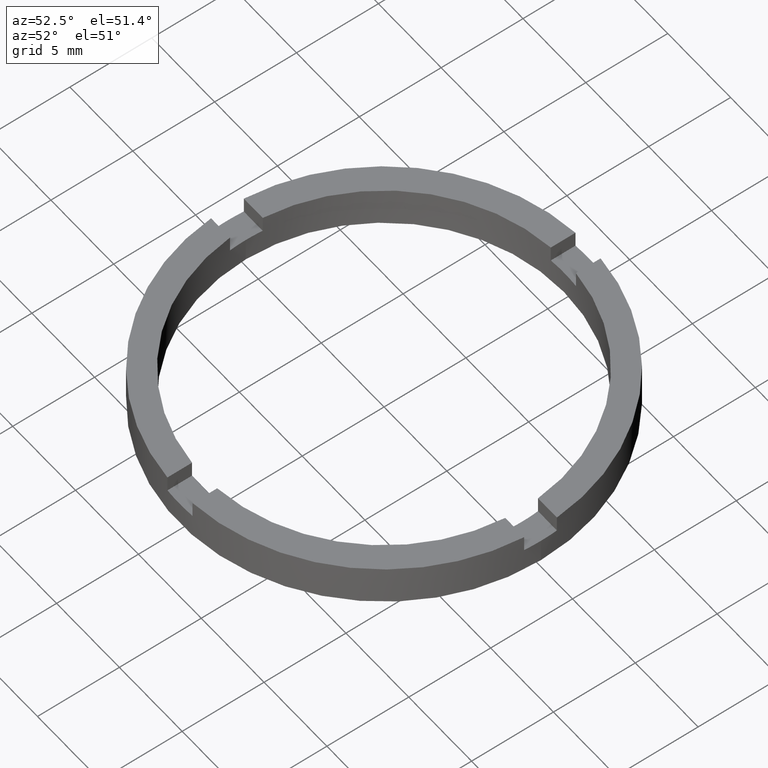
[diagram: clean part render]
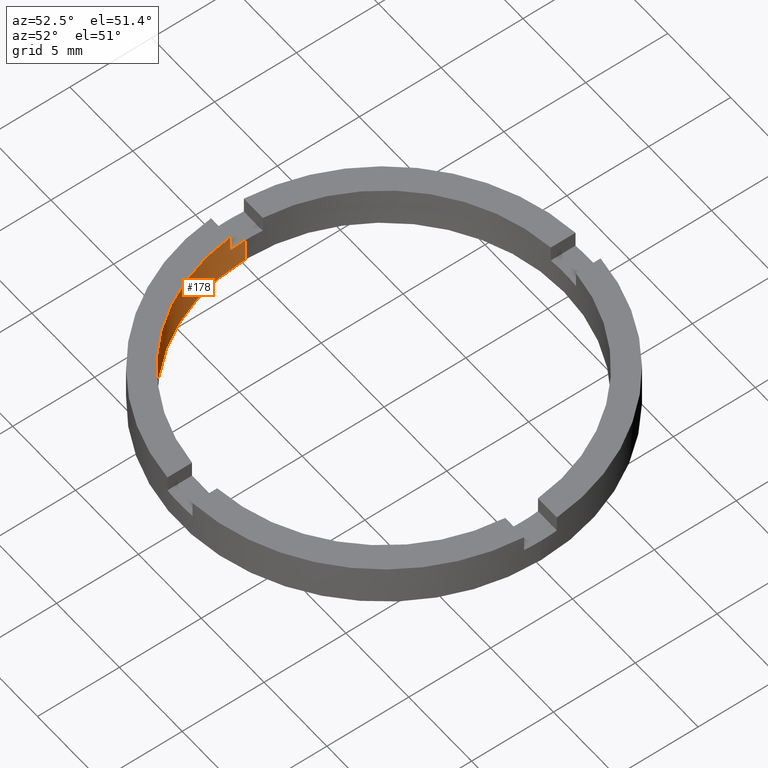
[diagram: same view with one face highlighted and labeled with its STEP entity id]
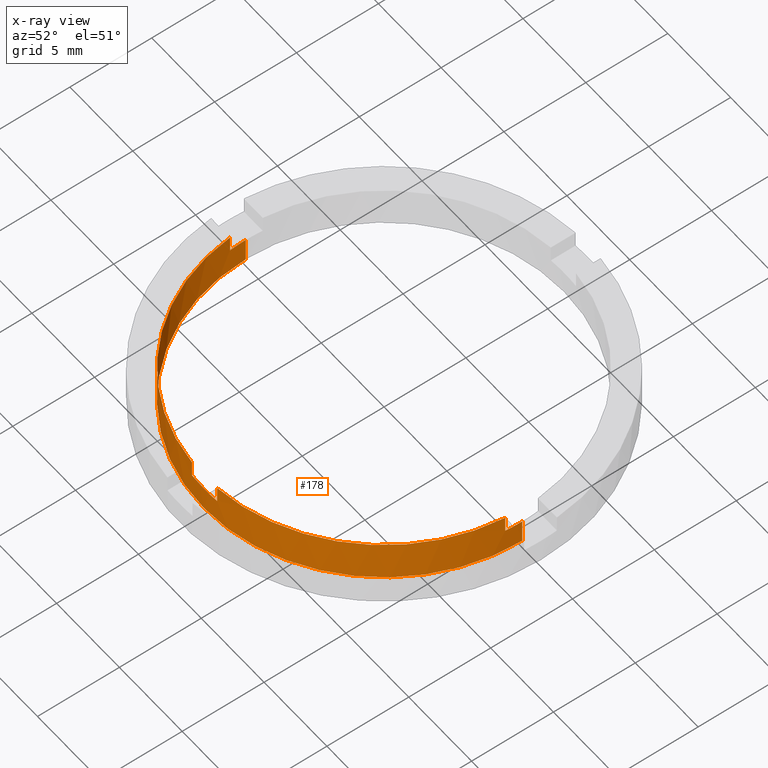
[diagram: x-ray of the same camera — body ghosted, the highlighted face saturated]
A machine part, auxiliary view. The second image highlights one B-rep face of the part: STEP entity #178.
The next image is the same camera in x-ray: the body ghosted, the highlighted face saturated — about 0% of this face is hidden behind the body in this view.
In plain terms, the highlighted cylindrical surface (partial cylindrical patch) has radius 11 mm, axis along (-0, -0, -1).
Its self-contained STEP definition (entity closure, byte-faithful):
#4 = CARTESIAN_POINT ( 'NONE',  ( 0.000000000000000000, 0.000000000000000000, 1.500000000000000000 ) ) ;
#7 = DIRECTION ( 'NONE',  ( 1.000000000000000000, 0.000000000000000000, 0.000000000000000000 ) ) ;
#12 = CARTESIAN_POINT ( 'NONE',  ( -11.00000000000000000, 0.000000000000000000, 0.000000000000000000 ) ) ;
#27 = EDGE_CURVE ( 'NONE', #173, #233, #423, .T. ) ;
#35 = EDGE_CURVE ( 'NONE', #496, #732, #366, .T. ) ;
#37 = LINE ( 'NONE', #568, #541 ) ;
#43 = DIRECTION ( 'NONE',  ( -0.000000000000000000, -0.000000000000000000, -1.000000000000000000 ) ) ;
#63 = CARTESIAN_POINT ( 'NONE',  ( 10.95445115010330639, -1.000000000000159872, 2.500000000000000000 ) ) ;
#65 = CARTESIAN_POINT ( 'NONE',  ( -11.00000000000000000, 0.000000000000000000, 2.500000000000000000 ) ) ;
#80 = AXIS2_PLACEMENT_3D ( 'NONE', #4, #87, #7 ) ;
#83 = AXIS2_PLACEMENT_3D ( 'NONE', #578, #142, #694 ) ;
#85 = EDGE_CURVE ( 'NONE', #699, #496, #657, .T. ) ;
#87 = DIRECTION ( 'NONE',  ( 0.000000000000000000, 0.000000000000000000, 1.000000000000000000 ) ) ;
#118 = VECTOR ( 'NONE', #43, 1000.000000000000000 ) ;
#125 = LINE ( 'NONE', #626, #133 ) ;
#133 = VECTOR ( 'NONE', #545, 1000.000000000000000 ) ;
#142 = DIRECTION ( 'NONE',  ( -0.000000000000000000, -0.000000000000000000, -1.000000000000000000 ) ) ;
#149 = CYLINDRICAL_SURFACE ( 'NONE', #83, 11.00000000000000000 ) ;
#152 = VERTEX_POINT ( 'NONE', #606 ) ;
#161 = ORIENTED_EDGE ( 'NONE', *, *, #426, .F. ) ;
#171 = VERTEX_POINT ( 'NONE', #607 ) ;
#173 = VERTEX_POINT ( 'NONE', #575 ) ;
#177 = CARTESIAN_POINT ( 'NONE',  ( 0.9999999999998363531, -10.95445115010333659, 1.500000000000000000 ) ) ;
#178 = ADVANCED_FACE ( 'NONE', ( #642 ), #149, .F. ) ;
#183 = ORIENTED_EDGE ( 'NONE', *, *, #314, .F. ) ;
#187 = VERTEX_POINT ( 'NONE', #220 ) ;
#209 = DIRECTION ( 'NONE',  ( 0.000000000000000000, 0.000000000000000000, 1.000000000000000000 ) ) ;
#211 = EDGE_CURVE ( 'NONE', #171, #685, #659, .T. ) ;
#220 = CARTESIAN_POINT ( 'NONE',  ( -1.000000000000163647, -10.95445115010330639, 2.500000000000000000 ) ) ;
#233 = VERTEX_POINT ( 'NONE', #63 ) ;
#234 = ORIENTED_EDGE ( 'NONE', *, *, #85, .T. ) ;
#250 = EDGE_CURVE ( 'NONE', #515, #464, #652, .T. ) ;
#255 = ORIENTED_EDGE ( 'NONE', *, *, #592, .F. ) ;
#256 = DIRECTION ( 'NONE',  ( -0.000000000000000000, -0.000000000000000000, -1.000000000000000000 ) ) ;
#257 = ORIENTED_EDGE ( 'NONE', *, *, #211, .F. ) ;
#260 = CARTESIAN_POINT ( 'NONE',  ( 10.95445115010330639, -1.000000000000159872, 1.500000000000000000 ) ) ;
#288 = AXIS2_PLACEMENT_3D ( 'NONE', #778, #631, #394 ) ;
#304 = CARTESIAN_POINT ( 'NONE',  ( -10.95445115010331882, -1.000000000000021982, 1.500000000000000000 ) ) ;
#312 = CARTESIAN_POINT ( 'NONE',  ( 11.00000000000000000, 1.347111479062088405E-15, 2.500000000000000000 ) ) ;
#314 = EDGE_CURVE ( 'NONE', #173, #464, #392, .T. ) ;
#331 = CARTESIAN_POINT ( 'NONE',  ( -1.000000000000163647, -10.95445115010330639, 2.500000000000000000 ) ) ;
#338 = DIRECTION ( 'NONE',  ( 0.000000000000000000, 0.000000000000000000, 1.000000000000000000 ) ) ;
#344 = CARTESIAN_POINT ( 'NONE',  ( 0.000000000000000000, 0.000000000000000000, 1.500000000000000000 ) ) ;
#350 = DIRECTION ( 'NONE',  ( 1.000000000000000000, 0.000000000000000000, 0.000000000000000000 ) ) ;
#353 = CARTESIAN_POINT ( 'NONE',  ( 11.00000000000000000, 1.347111479062088405E-15, 0.000000000000000000 ) ) ;
#355 = AXIS2_PLACEMENT_3D ( 'NONE', #344, #564, #350 ) ;
#366 = LINE ( 'NONE', #312, #374 ) ;
#369 = CIRCLE ( 'NONE', #80, 11.00000000000000000 ) ;
#374 = VECTOR ( 'NONE', #519, 1000.000000000000000 ) ;
#377 = LINE ( 'NONE', #331, #628 ) ;
#381 = DIRECTION ( 'NONE',  ( 1.000000000000000000, 0.000000000000000000, 0.000000000000000000 ) ) ;
#383 = VECTOR ( 'NONE', #256, 1000.000000000000000 ) ;
#392 = LINE ( 'NONE', #396, #118 ) ;
#394 = DIRECTION ( 'NONE',  ( 1.000000000000000000, 0.000000000000000000, 0.000000000000000000 ) ) ;
#396 = CARTESIAN_POINT ( 'NONE',  ( 0.9999999999998363531, -10.95445115010333659, 2.500000000000000000 ) ) ;
#423 = CIRCLE ( 'NONE', #549, 11.00000000000000000 ) ;
#426 = EDGE_CURVE ( 'NONE', #699, #233, #125, .T. ) ;
#427 = ORIENTED_EDGE ( 'NONE', *, *, #766, .F. ) ;
#435 = DIRECTION ( 'NONE',  ( 1.000000000000000000, 0.000000000000000000, 0.000000000000000000 ) ) ;
#446 = ORIENTED_EDGE ( 'NONE', *, *, #591, .T. ) ;
#453 = ORIENTED_EDGE ( 'NONE', *, *, #250, .T. ) ;
#454 = DIRECTION ( 'NONE',  ( -0.000000000000000000, -0.000000000000000000, -1.000000000000000000 ) ) ;
#457 = CIRCLE ( 'NONE', #288, 11.00000000000000000 ) ;
#464 = VERTEX_POINT ( 'NONE', #177 ) ;
#475 = EDGE_LOOP ( 'NONE', ( #234, #482, #255, #257, #707, #427, #446, #781, #453, #183, #489, #161 ) ) ;
#479 = CARTESIAN_POINT ( 'NONE',  ( 0.000000000000000000, 0.000000000000000000, 0.000000000000000000 ) ) ;
#482 = ORIENTED_EDGE ( 'NONE', *, *, #35, .T. ) ;
#489 = ORIENTED_EDGE ( 'NONE', *, *, #27, .T. ) ;
#496 = VERTEX_POINT ( 'NONE', #534 ) ;
#513 = DIRECTION ( 'NONE',  ( 1.000000000000000000, 0.000000000000000000, 0.000000000000000000 ) ) ;
#515 = VERTEX_POINT ( 'NONE', #584 ) ;
#519 = DIRECTION ( 'NONE',  ( -0.000000000000000000, -0.000000000000000000, -1.000000000000000000 ) ) ;
#526 = DIRECTION ( 'NONE',  ( 0.000000000000000000, 0.000000000000000000, 1.000000000000000000 ) ) ;
#534 = CARTESIAN_POINT ( 'NONE',  ( 11.00000000000000000, 1.347111479062088405E-15, 1.500000000000000000 ) ) ;
#541 = VECTOR ( 'NONE', #454, 1000.000000000000000 ) ;
#543 = EDGE_CURVE ( 'NONE', #171, #779, #369, .T. ) ;
#545 = DIRECTION ( 'NONE',  ( 0.000000000000000000, 0.000000000000000000, 1.000000000000000000 ) ) ;
#549 = AXIS2_PLACEMENT_3D ( 'NONE', #772, #209, #435 ) ;
#564 = DIRECTION ( 'NONE',  ( -0.000000000000000000, 0.000000000000000000, 1.000000000000000000 ) ) ;
#568 = CARTESIAN_POINT ( 'NONE',  ( -10.95445115010331882, -1.000000000000021982, 2.500000000000000000 ) ) ;
#570 = EDGE_CURVE ( 'NONE', #515, #187, #377, .T. ) ;
#574 = AXIS2_PLACEMENT_3D ( 'NONE', #742, #526, #513 ) ;
#575 = CARTESIAN_POINT ( 'NONE',  ( 0.9999999999998363531, -10.95445115010333659, 2.500000000000000000 ) ) ;
#578 = CARTESIAN_POINT ( 'NONE',  ( 0.000000000000000000, 0.000000000000000000, 2.500000000000000000 ) ) ;
#584 = CARTESIAN_POINT ( 'NONE',  ( -1.000000000000163647, -10.95445115010330639, 1.500000000000000000 ) ) ;
#590 = DIRECTION ( 'NONE',  ( 0.000000000000000000, 0.000000000000000000, 1.000000000000000000 ) ) ;
#591 = EDGE_CURVE ( 'NONE', #152, #187, #457, .T. ) ;
#592 = EDGE_CURVE ( 'NONE', #685, #732, #711, .T. ) ;
#606 = CARTESIAN_POINT ( 'NONE',  ( -10.95445115010331882, -1.000000000000021982, 2.500000000000000000 ) ) ;
#607 = CARTESIAN_POINT ( 'NONE',  ( -11.00000000000000000, 0.000000000000000000, 1.500000000000000000 ) ) ;
#626 = CARTESIAN_POINT ( 'NONE',  ( 10.95445115010330639, -1.000000000000159872, 2.500000000000000000 ) ) ;
#628 = VECTOR ( 'NONE', #590, 1000.000000000000000 ) ;
#631 = DIRECTION ( 'NONE',  ( 0.000000000000000000, 0.000000000000000000, 1.000000000000000000 ) ) ;
#642 = FACE_OUTER_BOUND ( 'NONE', #475, .T. ) ;
#652 = CIRCLE ( 'NONE', #355, 11.00000000000000000 ) ;
#657 = CIRCLE ( 'NONE', #574, 11.00000000000000000 ) ;
#659 = LINE ( 'NONE', #65, #383 ) ;
#685 = VERTEX_POINT ( 'NONE', #12 ) ;
#694 = DIRECTION ( 'NONE',  ( -1.000000000000000000, 0.000000000000000000, 0.000000000000000000 ) ) ;
#699 = VERTEX_POINT ( 'NONE', #260 ) ;
#707 = ORIENTED_EDGE ( 'NONE', *, *, #543, .T. ) ;
#711 = CIRCLE ( 'NONE', #758, 11.00000000000000000 ) ;
#732 = VERTEX_POINT ( 'NONE', #353 ) ;
#742 = CARTESIAN_POINT ( 'NONE',  ( 0.000000000000000000, 0.000000000000000000, 1.500000000000000000 ) ) ;
#758 = AXIS2_PLACEMENT_3D ( 'NONE', #479, #338, #381 ) ;
#766 = EDGE_CURVE ( 'NONE', #152, #779, #37, .T. ) ;
#772 = CARTESIAN_POINT ( 'NONE',  ( 0.000000000000000000, 0.000000000000000000, 2.500000000000000000 ) ) ;
#778 = CARTESIAN_POINT ( 'NONE',  ( 0.000000000000000000, 0.000000000000000000, 2.500000000000000000 ) ) ;
#779 = VERTEX_POINT ( 'NONE', #304 ) ;
#781 = ORIENTED_EDGE ( 'NONE', *, *, #570, .F. ) ;